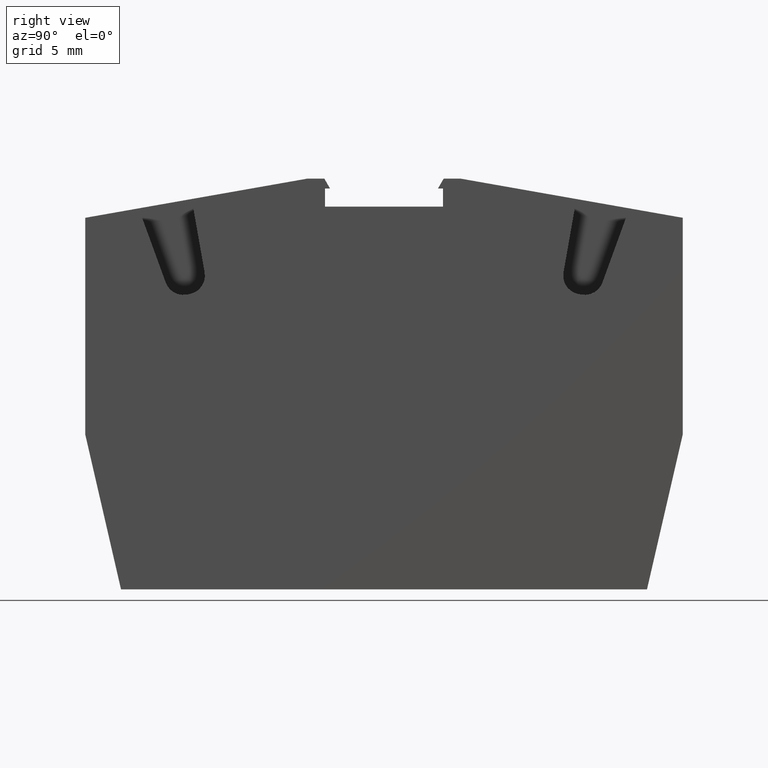
[diagram: clean part render]
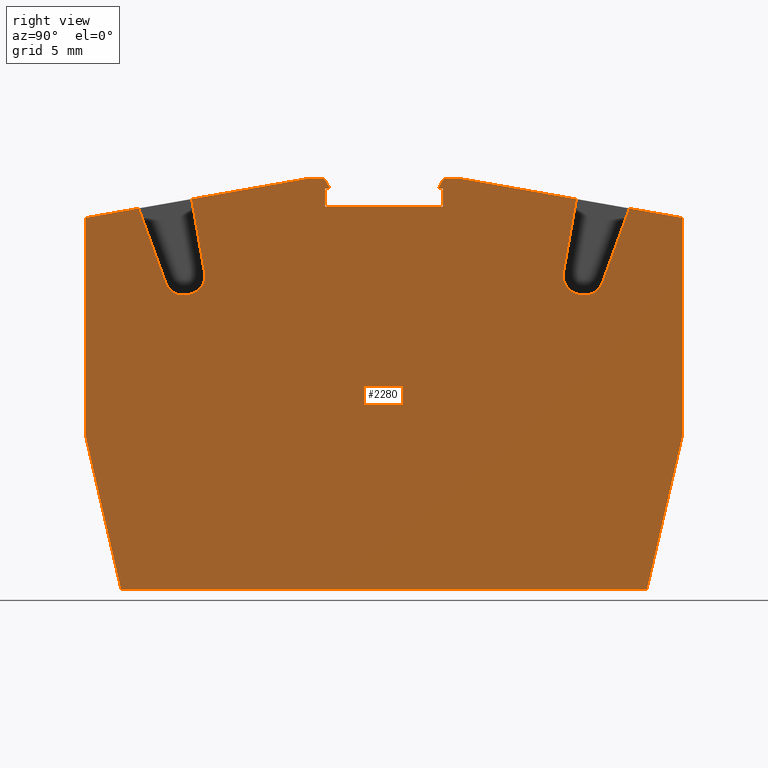
[diagram: same view with one face highlighted and labeled with its STEP entity id]
A machine part, right view. The second image highlights one B-rep face of the part: STEP entity #2280.
In plain terms, the highlighted planar face has unit normal (1, 0, -0).
Its self-contained STEP definition (entity closure, byte-faithful):
#10=CARTESIAN_POINT('',(8.03621504403304,131.836927118989,55.05));
#20=DIRECTION('',(0.,0.,-1.));
#30=DIRECTION('',(-1.,0.,0.));
#40=AXIS2_PLACEMENT_3D('',#10,#20,#30);
#50=PLANE('',#40);
#60=CARTESIAN_POINT('',(30.7687890493704,130.762530668224,
55.0499999999997));
#70=DIRECTION('',(0.999390827019096,0.0348994967024971,
-3.97549769558052E-15));
#80=VECTOR('',#70,1.);
#90=LINE('',#60,#80);
#100=CARTESIAN_POINT('',(0.0190285645127724,129.688725370406,
55.0499999999999));
#110=VERTEX_POINT('',#100);
#120=CARTESIAN_POINT('',(8.53216352631724,129.986010594059,
55.0499999999999));
#130=VERTEX_POINT('',#120);
#140=EDGE_CURVE('',#110,#130,#90,.T.);
#150=ORIENTED_EDGE('',*,*,#140,.T.);
#160=CARTESIAN_POINT('',(30.7687890493704,137.928098859773,
55.0499999999997));
#170=DIRECTION('',(0.965925826289069,0.258819045102517,
-4.08006961549746E-15));
#180=VECTOR('',#170,1.);
#190=LINE('',#160,#180);
#200=CARTESIAN_POINT('',(-11.1873617196465,126.685982143697,55.05));
#210=VERTEX_POINT('',#200);
#220=EDGE_CURVE('',#210,#110,#190,.T.);
#230=ORIENTED_EDGE('',*,*,#220,.T.);
#240=CARTESIAN_POINT('',(-6.72796270864294,75.7148182090425,
55.0499999999999));
#250=DIRECTION('',(-0.0871557427476545,0.996194698091746,
-7.0849665348537E-16));
#260=VECTOR('',#250,1.);
#270=LINE('',#240,#260);
#280=CARTESIAN_POINT('',(-10.9344408285833,123.795083130385,55.05));
#290=VERTEX_POINT('',#280);
#300=EDGE_CURVE('',#290,#210,#270,.T.);
#310=ORIENTED_EDGE('',*,*,#300,.T.);
#320=CARTESIAN_POINT('',(30.7687890493703,120.146523283648,
55.0499999999997));
#330=DIRECTION('',(0.996194698091746,-0.0871557427476572,
-3.83401130997576E-15));
#340=VECTOR('',#330,1.);
#350=LINE('',#320,#340);
#360=CARTESIAN_POINT('',(-6.71253439702367,123.425714179156,55.05));
#370=VERTEX_POINT('',#360);
#380=EDGE_CURVE('',#290,#370,#350,.T.);
#390=ORIENTED_EDGE('',*,*,#380,.F.);
#400=CARTESIAN_POINT('',(-6.79969013977131,122.429519481064,
55.0499999999999));
#410=DIRECTION('',(1.26217744835362E-29,-1.57772181044202E-30,-1.));
#420=DIRECTION('',(-1.,-8.88178419700117E-16,-1.26217744835362E-29));
#430=AXIS2_PLACEMENT_3D('',#400,#410,#420);
#440=CIRCLE('',#430,1.);
#450=CARTESIAN_POINT('',(-5.80349544167956,122.516675223812,55.05));
#460=VERTEX_POINT('',#450);
#470=EDGE_CURVE('',#370,#460,#440,.T.);
#480=ORIENTED_EDGE('',*,*,#470,.F.);
#490=CARTESIAN_POINT('',(-1.70886352092598,75.7148182090425,
55.0499999999999));
#500=DIRECTION('',(0.0871557427476592,-0.996194698091745,
7.08496653485351E-16));
#510=VECTOR('',#500,1.);
#520=LINE('',#490,#510);
#530=CARTESIAN_POINT('',(-5.78947205052647,122.35638712947,55.05));
#540=VERTEX_POINT('',#530);
#550=EDGE_CURVE('',#460,#540,#520,.T.);
#560=ORIENTED_EDGE('',*,*,#550,.F.);
#570=CARTESIAN_POINT('',(-6.7856667486182,122.269231386722,
55.0499999999999));
#580=DIRECTION('',(1.26217744835362E-29,-1.57772181044202E-30,-1.));
#590=DIRECTION('',(-1.,-8.88178419700117E-16,-1.26217744835362E-29));
#600=AXIS2_PLACEMENT_3D('',#570,#580,#590);
#610=CIRCLE('',#600,1.);
#620=CARTESIAN_POINT('',(-6.69851100587055,121.27303668863,55.05));
#630=VERTEX_POINT('',#620);
#640=EDGE_CURVE('',#540,#630,#610,.T.);
#650=ORIENTED_EDGE('',*,*,#640,.F.);
#660=CARTESIAN_POINT('',(30.7687890493703,124.551000696388,
55.0499999999997));
#670=DIRECTION('',(0.996194698091746,0.0871557427476591,
-4.01808419017143E-15));
#680=VECTOR('',#670,1.);
#690=LINE('',#660,#680);
#700=CARTESIAN_POINT('',(-10.6832897982375,120.924413717639,55.05));
#710=VERTEX_POINT('',#700);
#720=EDGE_CURVE('',#710,#630,#690,.T.);
#730=ORIENTED_EDGE('',*,*,#720,.T.);
#740=CARTESIAN_POINT('',(-10.1342086189274,114.648387119662,55.05));
#750=VERTEX_POINT('',#740);
#760=EDGE_CURVE('',#750,#710,#270,.T.);
#770=ORIENTED_EDGE('',*,*,#760,.T.);
#780=CARTESIAN_POINT('',(0.298009729134365,75.7148182090425,
55.0499999999999));
#790=DIRECTION('',(-0.258819045102517,0.965925826289069,
-2.44546880618514E-29));
#800=VECTOR('',#790,1.);
#810=LINE('',#780,#800);
#820=CARTESIAN_POINT('',(-9.9002848657084,113.775371787551,55.05));
#830=VERTEX_POINT('',#820);
#840=EDGE_CURVE('',#830,#750,#810,.T.);
#850=ORIENTED_EDGE('',*,*,#840,.T.);
#860=CARTESIAN_POINT('',(30.7687890493702,102.878126275405,
55.0499999999997));
#870=DIRECTION('',(0.965925826290971,-0.258819045095419,
-3.5334439362448E-15));
#880=VECTOR('',#870,1.);
#890=LINE('',#860,#880);
#900=CARTESIAN_POINT('',(-9.30914667773194,113.616976787472,55.05));
#910=VERTEX_POINT('',#900);
#920=EDGE_CURVE('',#830,#910,#890,.T.);
#930=ORIENTED_EDGE('',*,*,#920,.F.);
#940=CARTESIAN_POINT('',(0.8467061047886,75.7148182090425,
55.0499999999999));
#950=DIRECTION('',(-0.258819045103326,0.965925826288852,
3.39367961426079E-27));
#960=VECTOR('',#950,1.);
#970=LINE('',#940,#960);
#980=CARTESIAN_POINT('',(-9.37962507620784,113.88000575142,55.05));
#990=VERTEX_POINT('',#980);
#1000=EDGE_CURVE('',#910,#990,#970,.T.);
#1010=ORIENTED_EDGE('',*,*,#1000,.F.);
#1020=CARTESIAN_POINT('',(30.7687890493703,124.637740893773,
55.0499999999997));
#1030=DIRECTION('',(0.96592582628898,0.25881904510285,
-4.08006961549746E-15));
#1040=VECTOR('',#1030,1.);
#1050=LINE('',#1020,#1040);
#1060=CARTESIAN_POINT('',(-8.44267702470835,114.131060225169,55.05));
#1070=VERTEX_POINT('',#1060);
#1080=EDGE_CURVE('',#990,#1070,#1050,.T.);
#1090=ORIENTED_EDGE('',*,*,#1080,.F.);
#1100=CARTESIAN_POINT('',(22.1386483939722,-2.01140360002233E-13,
55.0499999999995));
#1110=DIRECTION('',(0.258819045102825,-0.965925826288987,
-4.08006961550003E-15));
#1120=VECTOR('',#1110,1.);
#1130=LINE('',#1100,#1120);
#1140=CARTESIAN_POINT('',(-6.80564656443284,108.021579373891,55.05));
#1150=VERTEX_POINT('',#1140);
#1160=EDGE_CURVE('',#1070,#1150,#1130,.T.);
#1170=ORIENTED_EDGE('',*,*,#1160,.F.);
#1180=CARTESIAN_POINT('',(30.7687890493703,118.089619052634,
55.0499999999997));
#1190=DIRECTION('',(-0.965925826289268,-0.258819045101776,
4.08006961549746E-15));
#1200=VECTOR('',#1190,1.);
#1210=LINE('',#1180,#1200);
#1220=CARTESIAN_POINT('',(-7.74259461593581,107.770524900142,55.05));
#1230=VERTEX_POINT('',#1220);
#1240=EDGE_CURVE('',#1150,#1230,#1210,.T.);
#1250=ORIENTED_EDGE('',*,*,#1240,.F.);
#1260=CARTESIAN_POINT('',(0.846706104709676,75.7148182090425,
55.0499999999999));
#1270=DIRECTION('',(-0.2588190451013,0.965925826289396,
-5.16782779010285E-27));
#1280=VECTOR('',#1270,1.);
#1290=LINE('',#1260,#1280);
#1300=CARTESIAN_POINT('',(-7.81307301441115,108.033553864089,55.05));
#1310=VERTEX_POINT('',#1300);
#1320=EDGE_CURVE('',#1230,#1310,#1290,.T.);
#1330=ORIENTED_EDGE('',*,*,#1320,.F.);
#1340=CARTESIAN_POINT('',(30.7687890493704,146.61541592727,
55.0499999999997));
#1350=DIRECTION('',(-0.70710678119205,-0.707106781181045,
3.53344393624568E-15));
#1360=VECTOR('',#1350,1.);
#1370=LINE('',#1340,#1360);
#1380=CARTESIAN_POINT('',(-8.24581620230558,107.600810676201,55.05));
#1390=VERTEX_POINT('',#1380);
#1400=EDGE_CURVE('',#1310,#1390,#1370,.T.);
#1410=ORIENTED_EDGE('',*,*,#1400,.F.);
#1420=CARTESIAN_POINT('',(0.298009729134347,75.7148182090425,
55.0499999999999));
#1430=DIRECTION('',(0.258819045102517,-0.965925826289069,
2.44546880618514E-29));
#1440=VECTOR('',#1430,1.);
#1450=LINE('',#1420,#1440);
#1460=CARTESIAN_POINT('',(-8.0118924490866,106.727795344091,55.05));
#1470=VERTEX_POINT('',#1460);
#1480=EDGE_CURVE('',#1390,#1470,#1450,.T.);
#1490=ORIENTED_EDGE('',*,*,#1480,.F.);
#1500=CARTESIAN_POINT('',(6.44969629117213,75.7148182090424,
55.0499999999999));
#1510=DIRECTION('',(0.422618261740696,-0.906307787036652,
-7.08496653485321E-16));
#1520=VECTOR('',#1510,1.);
#1530=LINE('',#1500,#1520);
#1540=CARTESIAN_POINT('',(-5.34939740011784,101.018056285755,
55.0499999999999));
#1550=VERTEX_POINT('',#1540);
#1560=EDGE_CURVE('',#1470,#1550,#1530,.T.);
#1570=ORIENTED_EDGE('',*,*,#1560,.F.);
#1580=CARTESIAN_POINT('',(30.7687890493703,117.86024322582,
55.0499999999997));
#1590=DIRECTION('',(0.906307787036657,0.422618261740684,
-4.01808419017145E-15));
#1600=VECTOR('',#1590,1.);
#1610=LINE('',#1580,#1600);
#1620=CARTESIAN_POINT('',(-1.72416625197212,102.708529332717,
55.0499999999999));
#1630=VERTEX_POINT('',#1620);
#1640=EDGE_CURVE('',#1550,#1630,#1610,.T.);
#1650=ORIENTED_EDGE('',*,*,#1640,.F.);
#1660=CARTESIAN_POINT('',(-1.30154799023144,101.80222154568,
55.0499999999999));
#1670=DIRECTION('',(-2.83989925879564E-29,6.9419759659449E-29,1.));
#1680=DIRECTION('',(-0.866025403784447,-0.499999999999986,
7.88860905221012E-30));
#1690=AXIS2_PLACEMENT_3D('',#1660,#1670,#1680);
#1700=CIRCLE('',#1690,1.);
#1710=CARTESIAN_POINT('',(-0.395240203194793,102.224839807421,
55.0499999999999));
#1720=VERTEX_POINT('',#1710);
#1730=EDGE_CURVE('',#1720,#1630,#1700,.T.);
#1740=ORIENTED_EDGE('',*,*,#1730,.T.);
#1750=CARTESIAN_POINT('',(11.966585885983,75.7148182090424,
55.0499999999998));
#1760=DIRECTION('',(-0.422618261740684,0.906307787036657,
7.08496653485271E-16));
#1770=VECTOR('',#1760,1.);
#1780=LINE('',#1750,#1770);
#1790=CARTESIAN_POINT('',(-0.327240769009499,102.07901455022,
55.0499999999999));
#1800=VERTEX_POINT('',#1790);
#1810=EDGE_CURVE('',#1800,#1720,#1780,.T.);
#1820=ORIENTED_EDGE('',*,*,#1810,.T.);
#1830=CARTESIAN_POINT('',(-1.23354855604612,101.656396288479,
55.0499999999999));
#1840=DIRECTION('',(-2.83989925879564E-29,6.9419759659449E-29,1.));
#1850=DIRECTION('',(-0.866025403784447,-0.499999999999986,
7.88860905221012E-30));
#1860=AXIS2_PLACEMENT_3D('',#1830,#1840,#1850);
#1870=CIRCLE('',#1860,1.);
#1880=CARTESIAN_POINT('',(-0.659972119695098,100.83724424419,
55.0499999999999));
#1890=VERTEX_POINT('',#1880);
#1900=EDGE_CURVE('',#1890,#1800,#1870,.T.);
#1910=ORIENTED_EDGE('',*,*,#1900,.T.);
#1920=CARTESIAN_POINT('',(30.7687890493703,122.843899731362,
55.0499999999997));
#1930=DIRECTION('',(0.819152044289001,0.573576436351033,
-3.83401130997579E-15));
#1940=VECTOR('',#1930,1.);
#1950=LINE('',#1920,#1940);
#1960=CARTESIAN_POINT('',(-4.13156586621149,98.4064081332777,
55.0499999999999));
#1970=VERTEX_POINT('',#1960);
#1980=EDGE_CURVE('',#1970,#1890,#1950,.T.);
#1990=ORIENTED_EDGE('',*,*,#1980,.T.);
#2000=CARTESIAN_POINT('',(-2.90515227636599,95.776355702447,
55.0499999999999));
#2010=VERTEX_POINT('',#2000);
#2020=EDGE_CURVE('',#1970,#2010,#1530,.T.);
#2030=ORIENTED_EDGE('',*,*,#2020,.F.);
#2040=CARTESIAN_POINT('',(30.7687890493703,104.799261086651,
55.0499999999997));
#2050=DIRECTION('',(0.965925826289069,0.258819045102517,
-4.08006961549746E-15));
#2060=VECTOR('',#2050,1.);
#2070=LINE('',#2040,#2060);
#2080=CARTESIAN_POINT('',(8.30123800779394,98.7790989291556,
55.0499999999998));
#2090=VERTEX_POINT('',#2080);
#2100=EDGE_CURVE('',#2010,#2090,#2070,.T.);
#2110=ORIENTED_EDGE('',*,*,#2100,.F.);
#2120=CARTESIAN_POINT('',(30.7687890493703,110.725307724297,
55.0499999999997));
#2130=DIRECTION('',(-0.882947592858929,-0.469471562785888,
3.97549769558053E-15));
#2140=VECTOR('',#2130,1.);
#2150=LINE('',#2120,#2140);
#2160=CARTESIAN_POINT('',(15.8224717623881,102.778209854204,
55.0499999999997));
#2170=VERTEX_POINT('',#2160);
#2180=EDGE_CURVE('',#2170,#2090,#2150,.T.);
#2190=ORIENTED_EDGE('',*,*,#2180,.T.);
#2200=CARTESIAN_POINT('',(7.93268530467199,132.22329377527,
55.0499999999998));
#2210=DIRECTION('',(0.258819045102518,-0.965925826289069,
2.20881053461883E-29));
#2220=VECTOR('',#2210,1.);
#2230=LINE('',#2200,#2220);
#2240=EDGE_CURVE('',#130,#2170,#2230,.T.);
#2250=ORIENTED_EDGE('',*,*,#2240,.T.);
#2260=EDGE_LOOP('',(#2250,#2190,#2110,#2030,#1990,#1910,#1820,#1740,
#1650,#1570,#1490,#1410,#1330,#1250,#1170,#1090,#1010,#930,#850,#770,
#730,#650,#560,#480,#390,#310,#230,#150));
#2270=FACE_OUTER_BOUND('',#2260,.T.);
#2280=ADVANCED_FACE('',(#2270),#50,.T.);